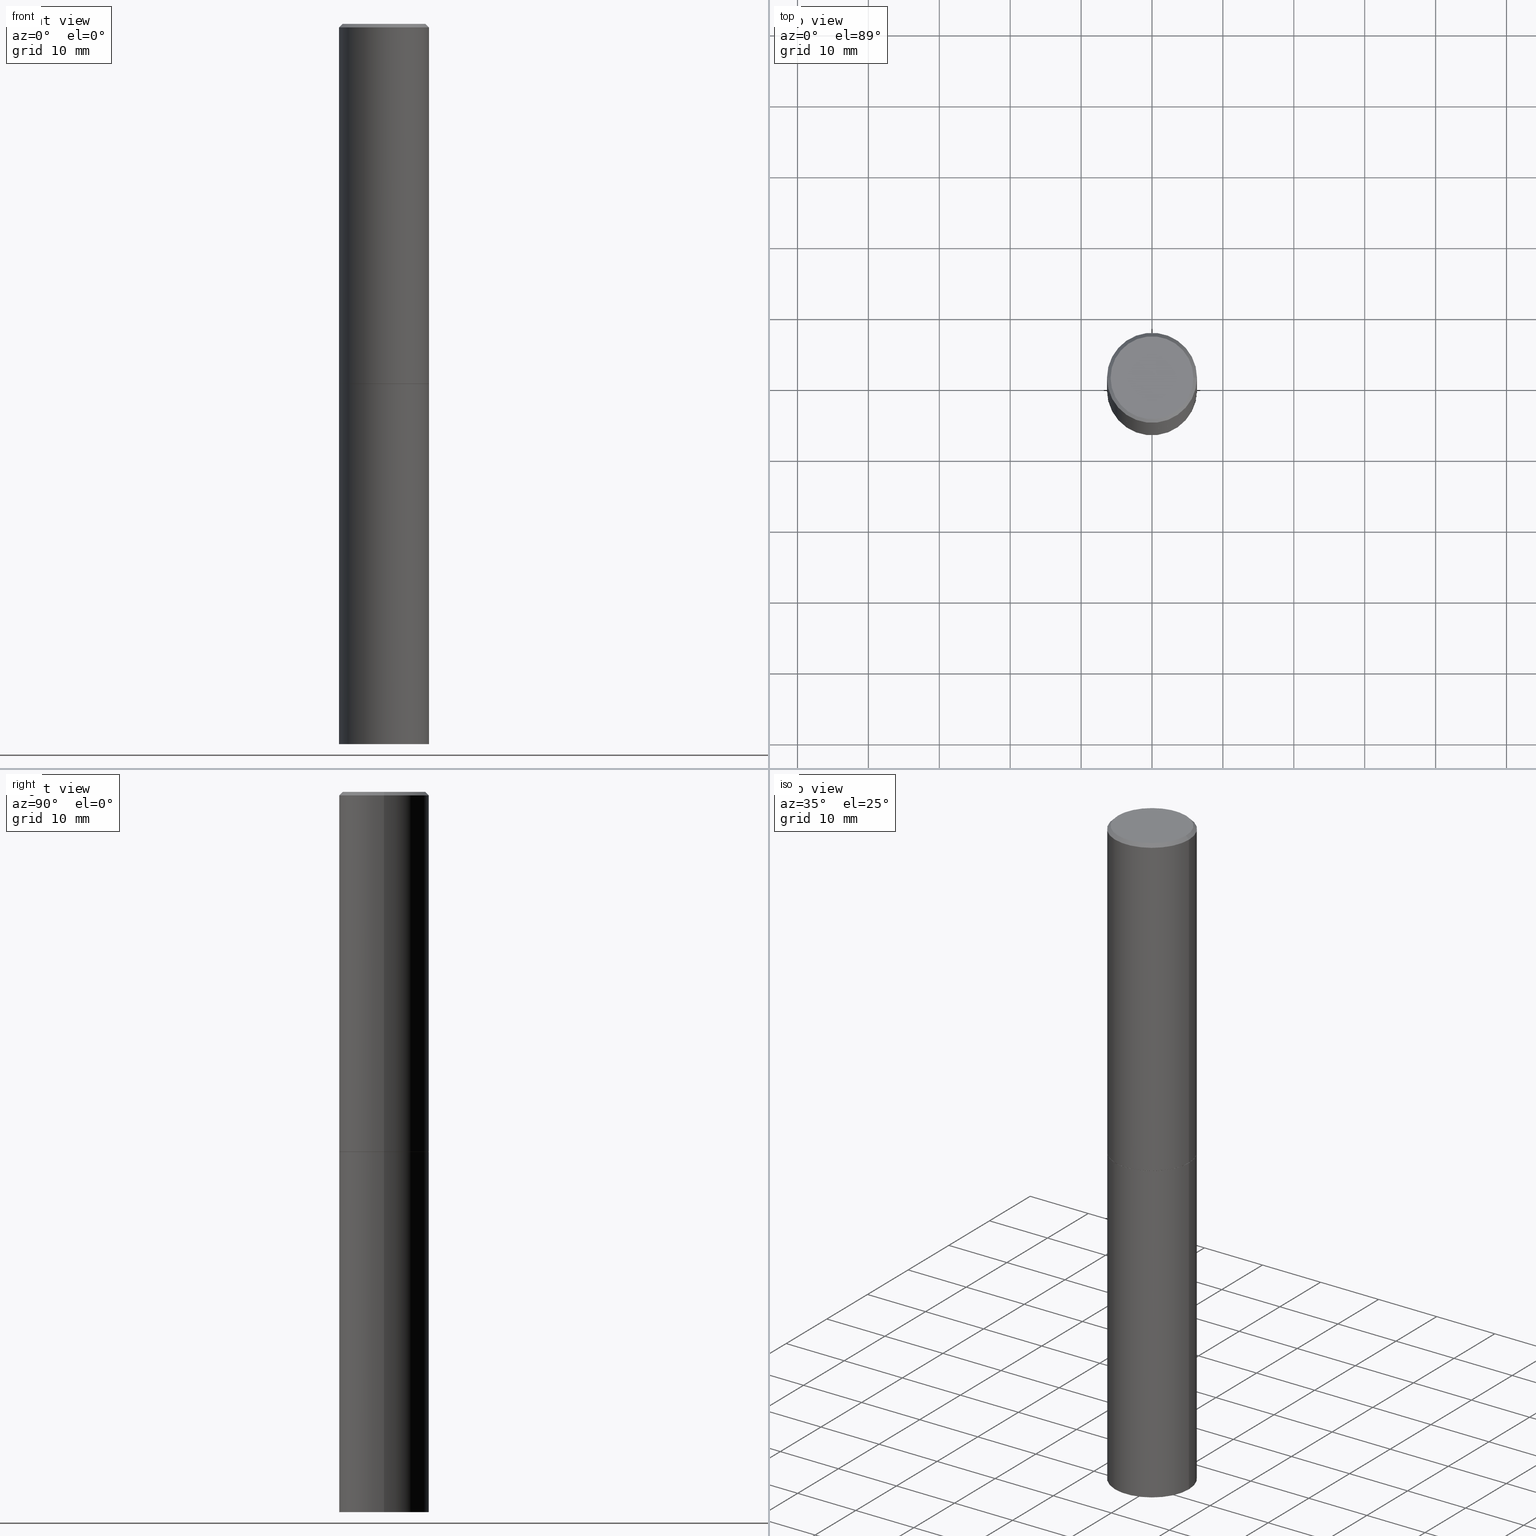
[diagram: canonical four-view strip — front | top / right | iso, engineering-drawing reading convention]
A machine part, canonical four-view strip (front | top / right | iso — engineering-drawing reading convention). The complete STEP part file that produces these views, byte-faithful:
ISO-10303-21;
HEADER;
FILE_DESCRIPTION (( 'STEP AP203' ),
    '1' );
FILE_NAME ('34714.STEP',
    '2024-02-27T16:56:23',
    ( '' ),
    ( '' ),
    'SwSTEP 2.0',
    'SolidWorks 2023',
    '' );
FILE_SCHEMA (( 'CONFIG_CONTROL_DESIGN' ));
ENDSEC;

DATA;
#1 = DIRECTION ( 'NONE',  ( -2.445468806185136597E-29, 3.491481338843145583E-15, 1.000000000000000000 ) ) ;
#2 = DATE_AND_TIME ( #281, #320 ) ;
#3 = AXIS2_PLACEMENT_3D ( 'NONE', #249, #121, #339 ) ;
#4 = SECURITY_CLASSIFICATION ( '', '', #284 ) ;
#5 = CARTESIAN_POINT ( 'NONE',  ( 0.2499999999999998890, -1.745740669421565889E-15, 1.219044193948983388E-29 ) ) ;
#6 = EDGE_LOOP ( 'NONE', ( #323, #219, #32, #199 ) ) ;
#7 = PERSON_AND_ORGANIZATION_ROLE ( 'creator' ) ;
#8 = DIRECTION ( 'NONE',  ( 2.438088387897960049E-29, -3.491481338843145188E-15, -1.000000000000000000 ) ) ;
#9 = DIRECTION ( 'NONE',  ( 2.438088387897960049E-29, -3.491481338843145188E-15, -1.000000000000000000 ) ) ;
#10 = ORIENTED_EDGE ( 'NONE', *, *, #254, .T. ) ;
#11 = AXIS2_PLACEMENT_3D ( 'NONE', #20, #162, #353 ) ;
#12 = VERTEX_POINT ( 'NONE', #263 ) ;
#13 = CC_DESIGN_PERSON_AND_ORGANIZATION_ASSIGNMENT ( #69, #178, ( #305 ) ) ;
#14 = ORIENTED_EDGE ( 'NONE', *, *, #228, .T. ) ;
#15 = CARTESIAN_POINT ( 'NONE',  ( 0.000000000000000000, 0.000000000000000000, 0.000000000000000000 ) ) ;
#16 = LINE ( 'NONE', #131, #18 ) ;
#17 = CC_DESIGN_PERSON_AND_ORGANIZATION_ASSIGNMENT ( #316, #7, ( #305 ) ) ;
#18 = VECTOR ( 'NONE', #184, 39.37007874015748143 ) ;
#19 = APPROVAL_ROLE ( '' ) ;
#20 = CARTESIAN_POINT ( 'NONE',  ( 4.890937612370285420E-31, -6.982962677686308865E-17, -0.02000000000000005246 ) ) ;
#21 = CYLINDRICAL_SURFACE ( 'NONE', #63, 0.2499999999999998890 ) ;
#22 = ORIENTED_EDGE ( 'NONE', *, *, #93, .T. ) ;
#23 = VECTOR ( 'NONE', #54, 39.37007874015748143 ) ;
#24 = VECTOR ( 'NONE', #79, 39.37007874015748854 ) ;
#25 = EDGE_CURVE ( 'NONE', #12, #246, #107, .T. ) ;
#26 = CARTESIAN_POINT ( 'NONE',  ( 0.2500000000000000000, -8.725211865769014047E-15, -1.998999999999999888 ) ) ;
#27 = ORIENTED_EDGE ( 'NONE', *, *, #200, .T. ) ;
#28 = DIRECTION ( 'NONE',  ( -2.445468806185136597E-29, 3.491481338843145583E-15, 1.000000000000000000 ) ) ;
#29 = PERSON ( 'UNSPECIFIED', 'UNSPECIFIED', 'UNSPECIFIED', ('UNSPECIFIED'), ('UNSPECIFIED'), ('UNSPECIFIED') ) ;
#30 = CARTESIAN_POINT ( 'NONE',  ( 4.890937612370273194E-29, -6.982962677686291165E-15, -2.000000000000000000 ) ) ;
#31 = EDGE_CURVE ( 'NONE', #356, #12, #293, .T. ) ;
#32 = ORIENTED_EDGE ( 'NONE', *, *, #47, .T. ) ;
#33 = CYLINDRICAL_SURFACE ( 'NONE', #71, 0.2500000000000000000 ) ;
#34 = DIRECTION ( 'NONE',  ( 1.000000000000000000, -6.982962677686266711E-15, 4.876176775795935793E-29 ) ) ;
#35 = PERSON_AND_ORGANIZATION_ROLE ( 'classification_officer' ) ;
#36 = DIRECTION ( 'NONE',  ( 1.000000000000000000, -6.982962677686270655E-15, 0.000000000000000000 ) ) ;
#37 = COORDINATED_UNIVERSAL_TIME_OFFSET ( 5, 0, .BEHIND. ) ;
#38 = LINE ( 'NONE', #5, #345 ) ;
#39 = DIRECTION ( 'NONE',  ( 1.000000000000000000, -6.982962677686266711E-15, 4.876176775795935793E-29 ) ) ;
#40 = AXIS2_PLACEMENT_3D ( 'NONE', #172, #108, #88 ) ;
#41 = CARTESIAN_POINT ( 'NONE',  ( 4.890937612370272633E-29, -6.982962677686290376E-15, -1.999999999999999778 ) ) ;
#42 = ORGANIZATION ( 'UNSPECIFIED', 'UNSPECIFIED', '' ) ;
#43 = APPROVAL_DATE_TIME ( #251, #104 ) ;
#44 =( LENGTH_UNIT ( ) NAMED_UNIT ( * ) SI_UNIT ( $, .METRE. ) );
#45 = ORIENTED_EDGE ( 'NONE', *, *, #222, .T. ) ;
#46 = APPLICATION_PROTOCOL_DEFINITION ( 'international standard', 'config_control_design', 1994, #326 ) ;
#47 = EDGE_CURVE ( 'NONE', #229, #160, #51, .T. ) ;
#48 = CIRCLE ( 'NONE', #314, 0.2299999999999997602 ) ;
#49 = APPLICATION_PROTOCOL_DEFINITION ( 'international standard', 'config_control_design', 1994, #161 ) ;
#50 = ADVANCED_FACE ( 'NONE', ( #261 ), #85, .T. ) ;
#51 = LINE ( 'NONE', #159, #122 ) ;
#52 = ORIENTED_EDGE ( 'NONE', *, *, #191, .F. ) ;
#53 = AXIS2_PLACEMENT_3D ( 'NONE', #213, #244, #332 ) ;
#54 = DIRECTION ( 'NONE',  ( -0.7071067811866199593, 7.493145998870616062E-15, 0.7071067811864750752 ) ) ;
#55 = EDGE_CURVE ( 'NONE', #168, #98, #16, .T. ) ;
#56 = DIRECTION ( 'NONE',  ( -2.445468806185136597E-29, 3.491481338843145583E-15, 1.000000000000000000 ) ) ;
#57 = FACE_OUTER_BOUND ( 'NONE', #82, .T. ) ;
#58 = AXIS2_PLACEMENT_3D ( 'NONE', #285, #8, #221 ) ;
#59 = LOCAL_TIME ( 11, 56, 23.00000000000000000, #310 ) ;
#60 = CARTESIAN_POINT ( 'NONE',  ( -0.2299999999999997602, 1.640996229256270941E-15, 4.268512490089056766E-18 ) ) ;
#61 = LINE ( 'NONE', #210, #140 ) ;
#62 = CARTESIAN_POINT ( 'NONE',  ( 4.890937612370272633E-29, -6.982962677686290376E-15, -1.999999999999999778 ) ) ;
#63 = AXIS2_PLACEMENT_3D ( 'NONE', #15, #137, #34 ) ;
#64 = APPROVAL_PERSON_ORGANIZATION ( #287, #185, #19 ) ;
#65 = DIRECTION ( 'NONE',  ( 1.000000000000000000, -6.982962677686266711E-15, 0.000000000000000000 ) ) ;
#66 = EDGE_CURVE ( 'NONE', #115, #246, #90, .T. ) ;
#67 = CIRCLE ( 'NONE', #187, 0.2500000000000000000 ) ;
#68 = EDGE_CURVE ( 'NONE', #237, #246, #74, .T. ) ;
#69 = PERSON_AND_ORGANIZATION ( #29, #42 ) ;
#70 = ORIENTED_EDGE ( 'NONE', *, *, #357, .T. ) ;
#71 = AXIS2_PLACEMENT_3D ( 'NONE', #270, #209, #39 ) ;
#72 = CALENDAR_DATE ( 2024, 27, 2 ) ;
#73 = UNCERTAINTY_MEASURE_WITH_UNIT (LENGTH_MEASURE( 1.000000000000000082E-05 ), #252, 'distance_accuracy_value', 'NONE');
#74 = LINE ( 'NONE', #207, #24 ) ;
#75 = CIRCLE ( 'NONE', #153, 0.2500000000000000000 ) ;
#76 = CARTESIAN_POINT ( 'NONE',  ( -0.2499999999999998890, 1.776356839400249676E-15, -1.229733772563726025E-29 ) ) ;
#77 = CC_DESIGN_PERSON_AND_ORGANIZATION_ASSIGNMENT ( #125, #309, ( #269 ) ) ;
#78 = ORIENTED_EDGE ( 'NONE', *, *, #120, .F. ) ;
#79 = DIRECTION ( 'NONE',  ( -0.7071067811865469066, 2.468850131082251144E-15, -0.7071067811865479058 ) ) ;
#80 = ORIENTED_EDGE ( 'NONE', *, *, #347, .T. ) ;
#81 = DIRECTION ( 'NONE',  ( 2.438088387897960049E-29, -3.491481338843145188E-15, -1.000000000000000000 ) ) ;
#82 = EDGE_LOOP ( 'NONE', ( #225, #223, #255, #52 ) ) ;
#83 = APPROVAL ( #220, 'UNSPECIFIED' ) ;
#84 = CARTESIAN_POINT ( 'NONE',  ( 0.2499999999999998057, -1.784954126219744611E-15, -0.02000000000000005246 ) ) ;
#85 = CONICAL_SURFACE ( 'NONE', #11, 0.2499999999999998057, 0.7853981633974476129 ) ;
#86 = CARTESIAN_POINT ( 'NONE',  ( 9.781875224740546387E-29, -1.396592535537258233E-14, -4.000000000000000000 ) ) ;
#87 = ORIENTED_EDGE ( 'NONE', *, *, #132, .F. ) ;
#88 = DIRECTION ( 'NONE',  ( -1.000000000000000000, 6.982962677686266711E-15, 0.000000000000000000 ) ) ;
#89 = DIRECTION ( 'NONE',  ( -2.445468806185136597E-29, 3.491481338843145583E-15, 1.000000000000000000 ) ) ;
#90 = CIRCLE ( 'NONE', #338, 0.2499999999999998057 ) ;
#91 = CC_DESIGN_APPROVAL ( #104, ( #269 ) ) ;
#92 = DATE_TIME_ROLE ( 'creation_date' ) ;
#93 = EDGE_CURVE ( 'NONE', #278, #160, #352, .T. ) ;
#94 = LENGTH_MEASURE_WITH_UNIT ( LENGTH_MEASURE( 0.02539999999999999897 ), #44 );
#95 = APPROVAL_ROLE ( '' ) ;
#96 = CALENDAR_DATE ( 2024, 27, 2 ) ;
#97 = DIRECTION ( 'NONE',  ( -2.445468806185136597E-29, 3.491481338843145583E-15, 1.000000000000000000 ) ) ;
#98 = VERTEX_POINT ( 'NONE', #26 ) ;
#99 = AXIS2_PLACEMENT_3D ( 'NONE', #117, #366, #167 ) ;
#100 = EDGE_LOOP ( 'NONE', ( #351, #235, #78, #152 ) ) ;
#101 = PERSON_AND_ORGANIZATION_ROLE ( 'design_owner' ) ;
#102 = EDGE_LOOP ( 'NONE', ( #70, #308, #181, #179 ) ) ;
#103 = DIRECTION ( 'NONE',  ( 1.000000000000000000, -6.982962677686266711E-15, 0.000000000000000000 ) ) ;
#104 = APPROVAL ( #300, 'UNSPECIFIED' ) ;
#105 = EDGE_LOOP ( 'NONE', ( #214, #290 ) ) ;
#106 = CIRCLE ( 'NONE', #53, 0.2299999999999997602 ) ;
#107 = LINE ( 'NONE', #76, #312 ) ;
#108 = DIRECTION ( 'NONE',  ( 2.445468806185136597E-29, -3.491481338843145583E-15, -1.000000000000000000 ) ) ;
#109 = ADVANCED_FACE ( 'NONE', ( #268 ), #142, .F. ) ;
#110 = DIRECTION ( 'NONE',  ( 1.000000000000000000, -6.982962677686266711E-15, 0.000000000000000000 ) ) ;
#111 = ADVANCED_BREP_SHAPE_REPRESENTATION ( '34714', ( #319, #321, #127 ), #272 ) ;
#112 = CLOSED_SHELL ( 'NONE', ( #303, #341, #50, #218, #170, #262, #109, #322 ) ) ;
#113 = CARTESIAN_POINT ( 'NONE',  ( 0.2299999999999997602, -1.681434332853597631E-15, 4.268512490111905999E-18 ) ) ;
#114 = CARTESIAN_POINT ( 'NONE',  ( 0.2489999999999999991, -8.721720384430171040E-15, -1.999999999999999778 ) ) ;
#115 = VERTEX_POINT ( 'NONE', #363 ) ;
#116 = CARTESIAN_POINT ( 'NONE',  ( 0.2500000000000000000, -1.571166602479415059E-14, -4.000000000000000000 ) ) ;
#117 = CARTESIAN_POINT ( 'NONE',  ( 4.890937612370273194E-29, -6.982962677686291165E-15, -2.000000000000000000 ) ) ;
#118 = ORIENTED_EDGE ( 'NONE', *, *, #175, .F. ) ;
#119 = DIRECTION ( 'NONE',  ( 1.000000000000000000, -6.982962677686270655E-15, 0.000000000000000000 ) ) ;
#120 = EDGE_CURVE ( 'NONE', #160, #278, #176, .T. ) ;
#121 = DIRECTION ( 'NONE',  ( -2.445468806185136597E-29, 3.491481338843145583E-15, 1.000000000000000000 ) ) ;
#122 = VECTOR ( 'NONE', #259, 39.37007874015748143 ) ;
#123 = AXIS2_PLACEMENT_3D ( 'NONE', #271, #9, #342 ) ;
#124 = COORDINATED_UNIVERSAL_TIME_OFFSET ( 5, 0, .BEHIND. ) ;
#125 = PERSON_AND_ORGANIZATION ( #29, #42 ) ;
#126 = FACE_OUTER_BOUND ( 'NONE', #151, .T. ) ;
#127 = AXIS2_PLACEMENT_3D ( 'NONE', #215, #279, #197 ) ;
#128 = EDGE_LOOP ( 'NONE', ( #283, #315, #292, #240 ) ) ;
#129 = CALENDAR_DATE ( 2024, 27, 2 ) ;
#130 = CIRCLE ( 'NONE', #260, 0.2500000000000000000 ) ;
#131 = CARTESIAN_POINT ( 'NONE',  ( 0.2489999999999999991, -8.721720384430171040E-15, -1.999999999999999778 ) ) ;
#132 = EDGE_CURVE ( 'NONE', #229, #346, #230, .T. ) ;
#133 = ORIENTED_EDGE ( 'NONE', *, *, #120, .T. ) ;
#134 = AXIS2_PLACEMENT_3D ( 'NONE', #86, #276, #36 ) ;
#135 = DIRECTION ( 'NONE',  ( -1.000000000000000000, 6.982962677686265922E-15, -4.876176775795935793E-29 ) ) ;
#136 = EDGE_LOOP ( 'NONE', ( #133, #22 ) ) ;
#137 = DIRECTION ( 'NONE',  ( -2.445468806185136597E-29, 3.491481338843145583E-15, 1.000000000000000000 ) ) ;
#138 = DIRECTION ( 'NONE',  ( -2.445468806185136597E-29, 3.491481338843145583E-15, 1.000000000000000000 ) ) ;
#139 = ORIENTED_EDGE ( 'NONE', *, *, #149, .F. ) ;
#140 = VECTOR ( 'NONE', #328, 39.37007874015748143 ) ;
#141 = CARTESIAN_POINT ( 'NONE',  ( 4.888492143564087591E-29, -6.979471196347447369E-15, -1.998999999999999888 ) ) ;
#142 = PLANE ( 'NONE',  #206 ) ;
#143 = ADVANCED_FACE ( 'NONE', ( #334 ), #145, .T. ) ;
#144 = DIRECTION ( 'NONE',  ( -2.445468806185136597E-29, 3.491481338843145583E-15, 1.000000000000000000 ) ) ;
#145 = CYLINDRICAL_SURFACE ( 'NONE', #265, 0.2500000000000000000 ) ;
#146 = PERSON_AND_ORGANIZATION ( #29, #42 ) ;
#147 = DIRECTION ( 'NONE',  ( -2.445468806185136877E-29, 3.491481338843145188E-15, 1.000000000000000000 ) ) ;
#148 = FACE_OUTER_BOUND ( 'NONE', #365, .T. ) ;
#149 = EDGE_CURVE ( 'NONE', #246, #115, #193, .T. ) ;
#150 =( NAMED_UNIT ( * ) SI_UNIT ( $, .STERADIAN. ) SOLID_ANGLE_UNIT ( ) );
#151 = EDGE_LOOP ( 'NONE', ( #325, #205, #80, #139 ) ) ;
#152 = ORIENTED_EDGE ( 'NONE', *, *, #47, .F. ) ;
#153 = AXIS2_PLACEMENT_3D ( 'NONE', #267, #173, #247 ) ;
#154 = PERSON_AND_ORGANIZATION ( #29, #42 ) ;
#155 = APPROVAL_PERSON_ORGANIZATION ( #146, #83, #95 ) ;
#156 = EDGE_CURVE ( 'NONE', #356, #168, #257, .T. ) ;
#157 = DESIGN_CONTEXT ( 'detailed design', #161, 'design' ) ;
#158 = PERSON_AND_ORGANIZATION ( #29, #42 ) ;
#159 = CARTESIAN_POINT ( 'NONE',  ( 0.2500000000000000000, -1.745740669421566678E-15, 1.219044193948983948E-29 ) ) ;
#160 = VERTEX_POINT ( 'NONE', #359 ) ;
#161 = APPLICATION_CONTEXT ( 'configuration controlled 3d designs of mechanical parts and assemblies' ) ;
#162 = DIRECTION ( 'NONE',  ( 2.445468806185136597E-29, -3.491481338843145583E-15, -1.000000000000000000 ) ) ;
#163 = DIRECTION ( 'NONE',  ( 1.000000000000000000, -6.982962677686266711E-15, 0.000000000000000000 ) ) ;
#164 = APPROVAL_ROLE ( '' ) ;
#165 = CONICAL_SURFACE ( 'NONE', #245, 0.2489999999999999991, 0.7853981633975507526 ) ;
#166 = FACE_OUTER_BOUND ( 'NONE', #136, .T. ) ;
#167 = DIRECTION ( 'NONE',  ( 1.000000000000000000, -6.982962677686266711E-15, 0.000000000000000000 ) ) ;
#168 = VERTEX_POINT ( 'NONE', #114 ) ;
#169 = PLANE ( 'NONE',  #123 ) ;
#170 = ADVANCED_FACE ( 'NONE', ( #126 ), #21, .T. ) ;
#171 = AXIS2_PLACEMENT_3D ( 'NONE', #62, #190, #273 ) ;
#172 = CARTESIAN_POINT ( 'NONE',  ( 4.890937612370285420E-31, -6.982962677686308865E-17, -0.02000000000000005246 ) ) ;
#173 = DIRECTION ( 'NONE',  ( -2.445468806185136597E-29, 3.491481338843145583E-15, 1.000000000000000000 ) ) ;
#174 = DIRECTION ( 'NONE',  ( 1.000000000000000000, -6.982962677686266711E-15, 4.876176775795935793E-29 ) ) ;
#175 = EDGE_CURVE ( 'NONE', #346, #229, #67, .T. ) ;
#176 = CIRCLE ( 'NONE', #99, 0.2500000000000000000 ) ;
#177 = CC_DESIGN_SECURITY_CLASSIFICATION ( #4, ( #305 ) ) ;
#178 = PERSON_AND_ORGANIZATION_ROLE ( 'design_supplier' ) ;
#179 = ORIENTED_EDGE ( 'NONE', *, *, #55, .F. ) ;
#180 = APPROVAL_STATUS ( 'not_yet_approved' ) ;
#181 = ORIENTED_EDGE ( 'NONE', *, *, #228, .F. ) ;
#182 = AXIS2_PLACEMENT_3D ( 'NONE', #41, #97, #282 ) ;
#183 = DIRECTION ( 'NONE',  ( -2.445468806185136877E-29, 3.491481338843145188E-15, 1.000000000000000000 ) ) ;
#184 = DIRECTION ( 'NONE',  ( 0.7071067811866199593, -2.468850131083015945E-15, 0.7071067811864750752 ) ) ;
#185 = APPROVAL ( #180, 'UNSPECIFIED' ) ;
#186 = LINE ( 'NONE', #84, #302 ) ;
#187 = AXIS2_PLACEMENT_3D ( 'NONE', #337, #194, #119 ) ;
#188 = FACE_OUTER_BOUND ( 'NONE', #360, .T. ) ;
#189 = DIRECTION ( 'NONE',  ( 1.000000000000000000, -6.982962677686266711E-15, 0.000000000000000000 ) ) ;
#190 = DIRECTION ( 'NONE',  ( -2.445468806185136597E-29, 3.491481338843145583E-15, 1.000000000000000000 ) ) ;
#191 = EDGE_CURVE ( 'NONE', #12, #98, #130, .T. ) ;
#192 = DIRECTION ( 'NONE',  ( 1.000000000000000000, -6.982962677686267499E-15, 4.876225828469313926E-29 ) ) ;
#193 = CIRCLE ( 'NONE', #349, 0.2499999999999998057 ) ;
#194 = DIRECTION ( 'NONE',  ( -2.445468806185136597E-29, 3.491481338843145583E-15, 1.000000000000000000 ) ) ;
#195 = LOCAL_TIME ( 11, 56, 23.00000000000000000, #327 ) ;
#196 = CARTESIAN_POINT ( 'NONE',  ( 0.000000000000000000, 0.000000000000000000, 0.000000000000000000 ) ) ;
#197 = DIRECTION ( 'NONE',  ( 1.000000000000000000, 0.000000000000000000, 0.000000000000000000 ) ) ;
#198 = AXIS2_PLACEMENT_3D ( 'NONE', #248, #1, #189 ) ;
#199 = ORIENTED_EDGE ( 'NONE', *, *, #93, .F. ) ;
#200 = EDGE_CURVE ( 'NONE', #212, #115, #186, .T. ) ;
#201 = CIRCLE ( 'NONE', #182, 0.2489999999999999991 ) ;
#202 = CC_DESIGN_DATE_AND_TIME_ASSIGNMENT ( #2, #92, ( #269 ) ) ;
#203 = ORIENTED_EDGE ( 'NONE', *, *, #347, .F. ) ;
#204 = ORIENTED_EDGE ( 'NONE', *, *, #68, .F. ) ;
#205 = ORIENTED_EDGE ( 'NONE', *, *, #191, .T. ) ;
#206 = AXIS2_PLACEMENT_3D ( 'NONE', #30, #299, #329 ) ;
#207 = CARTESIAN_POINT ( 'NONE',  ( -0.2499999999999998057, 1.675911042644702196E-15, -0.02000000000000005246 ) ) ;
#208 = CC_DESIGN_PERSON_AND_ORGANIZATION_ASSIGNMENT ( #348, #101, ( #234 ) ) ;
#209 = DIRECTION ( 'NONE',  ( -2.445468806185136597E-29, 3.491481338843145583E-15, 1.000000000000000000 ) ) ;
#210 = CARTESIAN_POINT ( 'NONE',  ( -0.2500000000000000000, 1.776356839400250465E-15, -1.229733772563726445E-29 ) ) ;
#211 = CLOSED_SHELL ( 'NONE', ( #143, #361, #250, #236 ) ) ;
#212 = VERTEX_POINT ( 'NONE', #113 ) ;
#213 = CARTESIAN_POINT ( 'NONE',  ( -1.043851414335219820E-46, 1.490343170380447200E-32, 4.268512490100411279E-18 ) ) ;
#214 = ORIENTED_EDGE ( 'NONE', *, *, #357, .F. ) ;
#215 = CARTESIAN_POINT ( 'NONE',  ( 0.000000000000000000, 0.000000000000000000, 0.000000000000000000 ) ) ;
#216 = LOCAL_TIME ( 11, 56, 23.00000000000000000, #343 ) ;
#217 = DIRECTION ( 'NONE',  ( -2.445468806185136597E-29, 3.491481338843145583E-15, 1.000000000000000000 ) ) ;
#218 = ADVANCED_FACE ( 'NONE', ( #362 ), #330, .T. ) ;
#219 = ORIENTED_EDGE ( 'NONE', *, *, #175, .T. ) ;
#220 = APPROVAL_STATUS ( 'not_yet_approved' ) ;
#221 = DIRECTION ( 'NONE',  ( -1.000000000000000000, 6.982962677686265922E-15, -4.876176775795935793E-29 ) ) ;
#222 = EDGE_CURVE ( 'NONE', #212, #237, #106, .T. ) ;
#223 = ORIENTED_EDGE ( 'NONE', *, *, #156, .T. ) ;
#224 = APPROVAL_DATE_TIME ( #232, #185 ) ;
#225 = ORIENTED_EDGE ( 'NONE', *, *, #31, .F. ) ;
#226 = EDGE_LOOP ( 'NONE', ( #311, #27, #286, #204 ) ) ;
#227 = DATE_TIME_ROLE ( 'classification_date' ) ;
#228 = EDGE_CURVE ( 'NONE', #98, #12, #75, .T. ) ;
#229 = VERTEX_POINT ( 'NONE', #116 ) ;
#230 = CIRCLE ( 'NONE', #134, 0.2500000000000000000 ) ;
#231 = LOCAL_TIME ( 11, 56, 23.00000000000000000, #124 ) ;
#232 = DATE_AND_TIME ( #129, #195 ) ;
#233 = CARTESIAN_POINT ( 'NONE',  ( 4.890937612370285420E-31, -6.982962677686308865E-17, -0.02000000000000005246 ) ) ;
#234 = PRODUCT ( '34714', '34714', '', ( #277 ) ) ;
#235 = ORIENTED_EDGE ( 'NONE', *, *, #318, .T. ) ;
#236 = ADVANCED_FACE ( 'NONE', ( #306 ), #33, .T. ) ;
#237 = VERTEX_POINT ( 'NONE', #60 ) ;
#238 = AXIS2_PLACEMENT_3D ( 'NONE', #294, #56, #163 ) ;
#239 = APPROVAL_PERSON_ORGANIZATION ( #158, #104, #164 ) ;
#240 = ORIENTED_EDGE ( 'NONE', *, *, #149, .T. ) ;
#241 = PLANE ( 'NONE',  #331 ) ;
#242 = CARTESIAN_POINT ( 'NONE',  ( -0.2500000000000000000, -8.698087177129185889E-15, -2.000000000000000000 ) ) ;
#243 = PRODUCT_DEFINITION_SHAPE ( 'NONE', 'NONE',  #269 ) ;
#244 = DIRECTION ( 'NONE',  ( -2.445468806185136597E-29, 3.491481338843145583E-15, 1.000000000000000000 ) ) ;
#245 = AXIS2_PLACEMENT_3D ( 'NONE', #358, #144, #110 ) ;
#246 = VERTEX_POINT ( 'NONE', #296 ) ;
#247 = DIRECTION ( 'NONE',  ( 1.000000000000000000, -6.982962677686266711E-15, 0.000000000000000000 ) ) ;
#248 = CARTESIAN_POINT ( 'NONE',  ( 4.890937612370272633E-29, -6.982962677686290376E-15, -1.999999999999999778 ) ) ;
#249 = CARTESIAN_POINT ( 'NONE',  ( 0.000000000000000000, 0.000000000000000000, 0.000000000000000000 ) ) ;
#250 = ADVANCED_FACE ( 'NONE', ( #166 ), #241, .F. ) ;
#251 = DATE_AND_TIME ( #301, #231 ) ;
#252 =( CONVERSION_BASED_UNIT ( 'INCH', #94 ) LENGTH_UNIT ( ) NAMED_UNIT ( #364 ) );
#253 = APPROVAL_DATE_TIME ( #336, #83 ) ;
#254 = EDGE_CURVE ( 'NONE', #237, #212, #48, .T. ) ;
#255 = ORIENTED_EDGE ( 'NONE', *, *, #55, .T. ) ;
#256 = CARTESIAN_POINT ( 'NONE',  ( -0.2489999999999999991, -5.208412811295418518E-15, -1.999999999999999778 ) ) ;
#257 = CIRCLE ( 'NONE', #198, 0.2489999999999999991 ) ;
#258 = SHAPE_DEFINITION_REPRESENTATION ( #243, #111 ) ;
#259 = DIRECTION ( 'NONE',  ( -2.445468806185136877E-29, 3.491481338843145188E-15, 1.000000000000000000 ) ) ;
#260 = AXIS2_PLACEMENT_3D ( 'NONE', #141, #28, #275 ) ;
#261 = FACE_OUTER_BOUND ( 'NONE', #226, .T. ) ;
#262 = ADVANCED_FACE ( 'NONE', ( #57 ), #291, .T. ) ;
#263 = CARTESIAN_POINT ( 'NONE',  ( -0.2500000000000000000, -1.748293572161903489E-15, -1.998999999999999888 ) ) ;
#264 = ORIENTED_EDGE ( 'NONE', *, *, #25, .T. ) ;
#265 = AXIS2_PLACEMENT_3D ( 'NONE', #196, #138, #174 ) ;
#266 = CC_DESIGN_APPROVAL ( #185, ( #4 ) ) ;
#267 = CARTESIAN_POINT ( 'NONE',  ( 4.888492143564087591E-29, -6.979471196347447369E-15, -1.998999999999999888 ) ) ;
#268 = FACE_OUTER_BOUND ( 'NONE', #105, .T. ) ;
#269 = PRODUCT_DEFINITION ( 'UNKNOWN', '', #305, #157 ) ;
#270 = CARTESIAN_POINT ( 'NONE',  ( 0.000000000000000000, 0.000000000000000000, 0.000000000000000000 ) ) ;
#271 = CARTESIAN_POINT ( 'NONE',  ( 1.606081415867839490E-15, 0.2299999999999997602, -8.009064516888724897E-16 ) ) ;
#272 =( GEOMETRIC_REPRESENTATION_CONTEXT ( 3 ) GLOBAL_UNCERTAINTY_ASSIGNED_CONTEXT ( ( #73 ) ) GLOBAL_UNIT_ASSIGNED_CONTEXT ( ( #252, #344, #150 ) ) REPRESENTATION_CONTEXT ( 'NONE', 'WORKASPACE' ) );
#273 = DIRECTION ( 'NONE',  ( 1.000000000000000000, -6.982962677686266711E-15, 0.000000000000000000 ) ) ;
#274 = CC_DESIGN_PERSON_AND_ORGANIZATION_ASSIGNMENT ( #154, #35, ( #4 ) ) ;
#275 = DIRECTION ( 'NONE',  ( 1.000000000000000000, -6.982962677686266711E-15, 0.000000000000000000 ) ) ;
#276 = DIRECTION ( 'NONE',  ( -2.445468806185136597E-29, 3.491481338843145583E-15, 1.000000000000000000 ) ) ;
#277 = MECHANICAL_CONTEXT ( 'NONE', #326, 'mechanical' ) ;
#278 = VERTEX_POINT ( 'NONE', #242 ) ;
#279 = DIRECTION ( 'NONE',  ( 0.000000000000000000, 0.000000000000000000, 1.000000000000000000 ) ) ;
#280 = CARTESIAN_POINT ( 'NONE',  ( -0.2500000000000000000, -8.698087177129185889E-15, -4.000000000000000000 ) ) ;
#281 = CALENDAR_DATE ( 2024, 27, 2 ) ;
#282 = DIRECTION ( 'NONE',  ( 1.000000000000000000, -6.982962677686266711E-15, 0.000000000000000000 ) ) ;
#283 = ORIENTED_EDGE ( 'NONE', *, *, #200, .F. ) ;
#284 = SECURITY_CLASSIFICATION_LEVEL ( 'unclassified' ) ;
#285 = CARTESIAN_POINT ( 'NONE',  ( 1.745740669421664299E-15, 0.2499999999999860389, -4.000000000000000888 ) ) ;
#286 = ORIENTED_EDGE ( 'NONE', *, *, #66, .T. ) ;
#287 = PERSON_AND_ORGANIZATION ( #29, #42 ) ;
#288 = CC_DESIGN_DATE_AND_TIME_ASSIGNMENT ( #313, #227, ( #4 ) ) ;
#289 = CARTESIAN_POINT ( 'NONE',  ( -0.2489999999999999991, -5.213711265643640920E-15, -1.999999999999999778 ) ) ;
#290 = ORIENTED_EDGE ( 'NONE', *, *, #156, .F. ) ;
#291 = CONICAL_SURFACE ( 'NONE', #171, 0.2489999999999999991, 0.7853981633975507526 ) ;
#292 = ORIENTED_EDGE ( 'NONE', *, *, #68, .T. ) ;
#293 = LINE ( 'NONE', #289, #23 ) ;
#294 = CARTESIAN_POINT ( 'NONE',  ( 4.890937612370273194E-29, -6.982962677686291165E-15, -2.000000000000000000 ) ) ;
#295 = EDGE_LOOP ( 'NONE', ( #87, #118 ) ) ;
#296 = CARTESIAN_POINT ( 'NONE',  ( -0.2499999999999998057, 1.675911042644702196E-15, -0.02000000000000005246 ) ) ;
#297 = DIRECTION ( 'NONE',  ( 0.7071067811865469066, -7.319954787623252890E-15, -0.7071067811865479058 ) ) ;
#298 = FACE_OUTER_BOUND ( 'NONE', #102, .T. ) ;
#299 = DIRECTION ( 'NONE',  ( -2.438088387897960049E-29, 3.491481338843145188E-15, 1.000000000000000000 ) ) ;
#300 = APPROVAL_STATUS ( 'not_yet_approved' ) ;
#301 = CALENDAR_DATE ( 2024, 27, 2 ) ;
#302 = VECTOR ( 'NONE', #297, 39.37007874015748854 ) ;
#303 = ADVANCED_FACE ( 'NONE', ( #298 ), #165, .T. ) ;
#304 = FACE_OUTER_BOUND ( 'NONE', #295, .T. ) ;
#305 = PRODUCT_DEFINITION_FORMATION_WITH_SPECIFIED_SOURCE ( 'ANY', '', #234, .NOT_KNOWN. ) ;
#306 = FACE_OUTER_BOUND ( 'NONE', #6, .T. ) ;
#307 = CARTESIAN_POINT ( 'NONE',  ( 4.890937612370285420E-31, -6.982962677686308865E-17, -0.02000000000000005246 ) ) ;
#308 = ORIENTED_EDGE ( 'NONE', *, *, #31, .T. ) ;
#309 = PERSON_AND_ORGANIZATION_ROLE ( 'creator' ) ;
#310 = COORDINATED_UNIVERSAL_TIME_OFFSET ( 5, 0, .BEHIND. ) ;
#311 = ORIENTED_EDGE ( 'NONE', *, *, #222, .F. ) ;
#312 = VECTOR ( 'NONE', #183, 39.37007874015748143 ) ;
#313 = DATE_AND_TIME ( #72, #59 ) ;
#314 = AXIS2_PLACEMENT_3D ( 'NONE', #333, #89, #192 ) ;
#315 = ORIENTED_EDGE ( 'NONE', *, *, #254, .F. ) ;
#316 = PERSON_AND_ORGANIZATION ( #29, #42 ) ;
#317 = CYLINDRICAL_SURFACE ( 'NONE', #3, 0.2499999999999998890 ) ;
#318 = EDGE_CURVE ( 'NONE', #346, #278, #61, .T. ) ;
#319 = MANIFOLD_SOLID_BREP ( 'Body-Move/Copy2[1]', #211 ) ;
#320 = LOCAL_TIME ( 11, 56, 23.00000000000000000, #37 ) ;
#321 = MANIFOLD_SOLID_BREP ( 'Body-Move/Copy2[2]', #112 ) ;
#322 = ADVANCED_FACE ( 'NONE', ( #188 ), #169, .F. ) ;
#323 = ORIENTED_EDGE ( 'NONE', *, *, #318, .F. ) ;
#324 = ORIENTED_EDGE ( 'NONE', *, *, #66, .F. ) ;
#325 = ORIENTED_EDGE ( 'NONE', *, *, #25, .F. ) ;
#326 = APPLICATION_CONTEXT ( 'configuration controlled 3d designs of mechanical parts and assemblies' ) ;
#327 = COORDINATED_UNIVERSAL_TIME_OFFSET ( 5, 0, .BEHIND. ) ;
#328 = DIRECTION ( 'NONE',  ( -2.445468806185136877E-29, 3.491481338843145188E-15, 1.000000000000000000 ) ) ;
#329 = DIRECTION ( 'NONE',  ( 1.000000000000000000, -6.982962677686265922E-15, 4.876176775795935793E-29 ) ) ;
#330 = CONICAL_SURFACE ( 'NONE', #40, 0.2499999999999998057, 0.7853981633974476129 ) ;
#331 = AXIS2_PLACEMENT_3D ( 'NONE', #355, #81, #135 ) ;
#332 = DIRECTION ( 'NONE',  ( 1.000000000000000000, -6.982962677686267499E-15, 4.876225828469313926E-29 ) ) ;
#333 = CARTESIAN_POINT ( 'NONE',  ( -1.043851414335219820E-46, 1.490343170380447200E-32, 4.268512490100411279E-18 ) ) ;
#334 = FACE_OUTER_BOUND ( 'NONE', #100, .T. ) ;
#335 = PRODUCT_RELATED_PRODUCT_CATEGORY ( 'detail', '', ( #234 ) ) ;
#336 = DATE_AND_TIME ( #96, #216 ) ;
#337 = CARTESIAN_POINT ( 'NONE',  ( 9.781875224740546387E-29, -1.396592535537258233E-14, -4.000000000000000000 ) ) ;
#338 = AXIS2_PLACEMENT_3D ( 'NONE', #233, #350, #103 ) ;
#339 = DIRECTION ( 'NONE',  ( 1.000000000000000000, -6.982962677686266711E-15, 4.876176775795935793E-29 ) ) ;
#340 = PLANE ( 'NONE',  #58 ) ;
#341 = ADVANCED_FACE ( 'NONE', ( #148 ), #317, .T. ) ;
#342 = DIRECTION ( 'NONE',  ( -1.000000000000000000, 6.982962677686265922E-15, -4.876176775795935793E-29 ) ) ;
#343 = COORDINATED_UNIVERSAL_TIME_OFFSET ( 5, 0, .BEHIND. ) ;
#344 =( NAMED_UNIT ( * ) PLANE_ANGLE_UNIT ( ) SI_UNIT ( $, .RADIAN. ) );
#345 = VECTOR ( 'NONE', #147, 39.37007874015748143 ) ;
#346 = VERTEX_POINT ( 'NONE', #280 ) ;
#347 = EDGE_CURVE ( 'NONE', #98, #115, #38, .T. ) ;
#348 = PERSON_AND_ORGANIZATION ( #29, #42 ) ;
#349 = AXIS2_PLACEMENT_3D ( 'NONE', #307, #217, #65 ) ;
#350 = DIRECTION ( 'NONE',  ( -2.445468806185136597E-29, 3.491481338843145583E-15, 1.000000000000000000 ) ) ;
#351 = ORIENTED_EDGE ( 'NONE', *, *, #132, .T. ) ;
#352 = CIRCLE ( 'NONE', #238, 0.2500000000000000000 ) ;
#353 = DIRECTION ( 'NONE',  ( -1.000000000000000000, 6.982962677686266711E-15, 0.000000000000000000 ) ) ;
#354 = CC_DESIGN_APPROVAL ( #83, ( #305 ) ) ;
#355 = CARTESIAN_POINT ( 'NONE',  ( 1.745740669421615390E-15, 0.2499999999999930334, -2.000000000000000888 ) ) ;
#356 = VERTEX_POINT ( 'NONE', #256 ) ;
#357 = EDGE_CURVE ( 'NONE', #168, #356, #201, .T. ) ;
#358 = CARTESIAN_POINT ( 'NONE',  ( 4.890937612370272633E-29, -6.982962677686290376E-15, -1.999999999999999778 ) ) ;
#359 = CARTESIAN_POINT ( 'NONE',  ( 0.2500000000000000000, -8.728703347107857054E-15, -2.000000000000000000 ) ) ;
#360 = EDGE_LOOP ( 'NONE', ( #10, #45 ) ) ;
#361 = ADVANCED_FACE ( 'NONE', ( #304 ), #340, .T. ) ;
#362 = FACE_OUTER_BOUND ( 'NONE', #128, .T. ) ;
#363 = CARTESIAN_POINT ( 'NONE',  ( 0.2499999999999998057, -1.784954126219744611E-15, -0.02000000000000005246 ) ) ;
#364 = DIMENSIONAL_EXPONENTS ( 1.000000000000000000, 0.000000000000000000, 0.000000000000000000, 0.000000000000000000, 0.000000000000000000, 0.000000000000000000, 0.000000000000000000 ) ;
#365 = EDGE_LOOP ( 'NONE', ( #14, #264, #324, #203 ) ) ;
#366 = DIRECTION ( 'NONE',  ( -2.445468806185136597E-29, 3.491481338843145583E-15, 1.000000000000000000 ) ) ;
ENDSEC;
END-ISO-10303-21;
